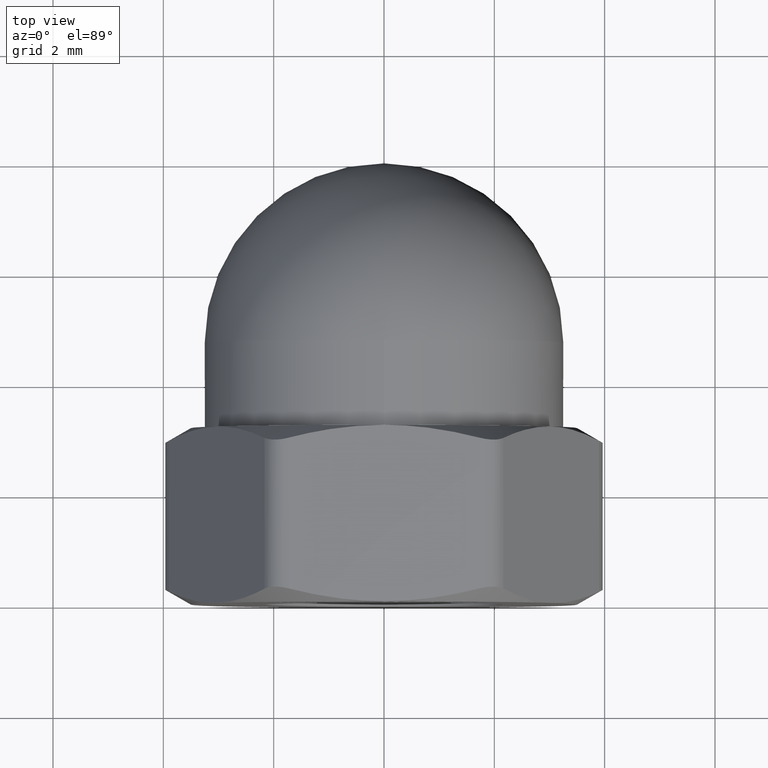
[diagram: clean part render]
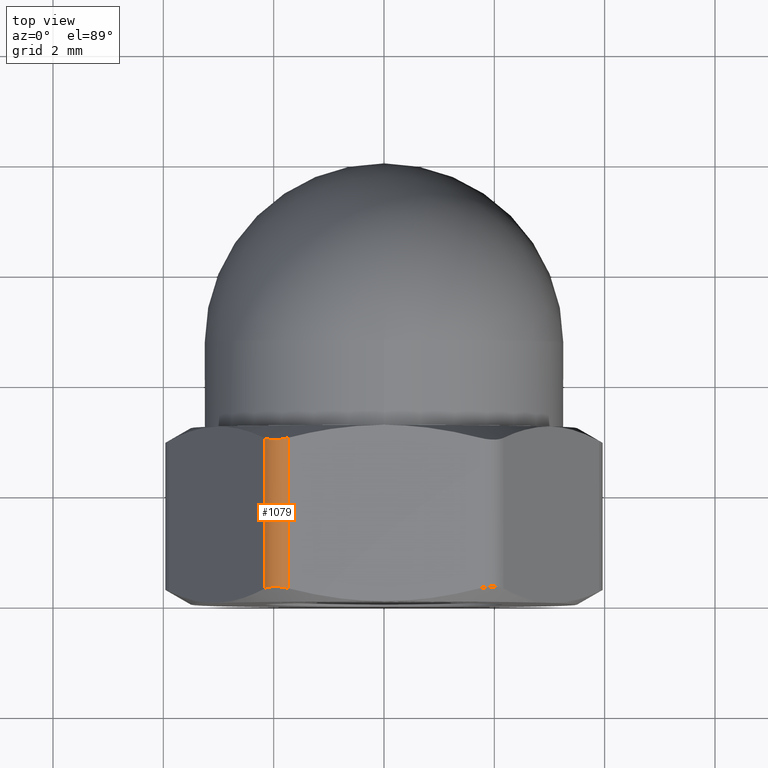
[diagram: same view with one face highlighted and labeled with its STEP entity id]
A machine part, top view. The second image highlights one B-rep face of the part: STEP entity #1079.
In plain terms, the highlighted cylindrical surface (edge-blend (fillet) strip) has radius 0.5 mm, axis along (0, -1, 0).
Its self-contained STEP definition (entity closure, byte-faithful):
#17 = CARTESIAN_POINT ( 'NONE',  ( -2.121969493532292800, 0.2559694276210456300, 3.324641025091053400 ) ) ;
#187 = LINE ( 'NONE', #3444, #2893 ) ;
#609 = ORIENTED_EDGE ( 'NONE', *, *, #2129, .F. ) ;
#719 = CARTESIAN_POINT ( 'NONE',  ( -1.732050807568966900, 2.966101065752227800, 3.500000000000000400 ) ) ;
#1079 = ADVANCED_FACE ( 'NONE', ( #2322 ), #4429, .T. ) ;
#2072 = CARTESIAN_POINT ( 'NONE',  ( -1.818238839427159600, 2.944030572378866700, 3.499999999999993800 ) ) ;
#2129 = EDGE_CURVE ( 'NONE', #6751, #3720, #187, .T. ) ;
#2322 = FACE_OUTER_BOUND ( 'NONE', #11961, .T. ) ;
#2494 = CARTESIAN_POINT ( 'NONE',  ( -2.057833504183887100, 0.2679865187067713700, 3.389344969317225100 ) ) ;
#2656 = CARTESIAN_POINT ( 'NONE',  ( -1.905537153561804200, 0.2679116865305356500, 3.477102041811184700 ) ) ;
#2780 = VECTOR ( 'NONE', #4577, 1000.000000000000000 ) ;
#2893 = VECTOR ( 'NONE', #13203, 1000.000000000000000 ) ;
#3444 = CARTESIAN_POINT ( 'NONE',  ( -1.732050807568875900, 3.200000000000000200, 3.500000000000000400 ) ) ;
#3720 = VERTEX_POINT ( 'NONE', #7125 ) ;
#4422 = CARTESIAN_POINT ( 'NONE',  ( -1.732050807568875900, 3.200000000000000200, 3.000000000000000400 ) ) ;
#4429 = CYLINDRICAL_SURFACE ( 'NONE', #4528, 0.5000000000000000000 ) ;
#4528 = AXIS2_PLACEMENT_3D ( 'NONE', #4422, #15405, #14516 ) ;
#4577 = DIRECTION ( 'NONE',  ( -0.0000000000000000000, 1.000000000000000000, -0.0000000000000000000 ) ) ;
#4634 = B_SPLINE_CURVE_WITH_KNOTS ( 'NONE', 3,
 ( #13498, #6127, #2656, #2494, #17, #13555 ),
 .UNSPECIFIED., .F., .F.,
 ( 4, 2, 4 ),
 ( 4.531265515576480700E-017, 0.0002632573935148302400, 0.0005265147870296151500 ),
 .UNSPECIFIED. ) ;
#4643 = CARTESIAN_POINT ( 'NONE',  ( -1.906342093526104600, 2.932013481293201700, 3.476808576040471400 ) ) ;
#5652 = CARTESIAN_POINT ( 'NONE',  ( -2.121982006247462100, 2.944036980735077700, 3.324619352432453200 ) ) ;
#6127 = CARTESIAN_POINT ( 'NONE',  ( -1.818213813996222900, 0.2559630192652003200, 3.500000000000000000 ) ) ;
#6141 = VERTEX_POINT ( 'NONE', #15504 ) ;
#6751 = VERTEX_POINT ( 'NONE', #10107 ) ;
#6810 = LINE ( 'NONE', #9575, #2780 ) ;
#7125 = CARTESIAN_POINT ( 'NONE',  ( -1.732050807568966700, 0.2338989342477722500, 3.500000000000000400 ) ) ;
#7605 = ORIENTED_EDGE ( 'NONE', *, *, #10327, .F. ) ;
#8003 = EDGE_CURVE ( 'NONE', #3720, #13394, #4634, .T. ) ;
#9575 = CARTESIAN_POINT ( 'NONE',  ( -2.165063509461095000, 3.200000000000000200, 3.250000000000000900 ) ) ;
#9848 = ORIENTED_EDGE ( 'NONE', *, *, #8003, .F. ) ;
#10022 = CARTESIAN_POINT ( 'NONE',  ( -2.165063509461289100, 0.2338989342476485700, 3.249999999999665200 ) ) ;
#10107 = CARTESIAN_POINT ( 'NONE',  ( -1.732050807568966900, 2.966101065752227800, 3.500000000000000400 ) ) ;
#10327 = EDGE_CURVE ( 'NONE', #6141, #6751, #13016, .T. ) ;
#11961 = EDGE_LOOP ( 'NONE', ( #7605, #15047, #9848, #609 ) ) ;
#13016 = B_SPLINE_CURVE_WITH_KNOTS ( 'NONE', 3,
 ( #15635, #5652, #13241, #4643, #2072, #719 ),
 .UNSPECIFIED., .F., .F.,
 ( 4, 2, 4 ),
 ( 6.133173666733496700E-019, 0.0002632573935145654700, 0.0005265147870291304100 ),
 .UNSPECIFIED. ) ;
#13089 = EDGE_CURVE ( 'NONE', #13394, #6141, #6810, .T. ) ;
#13203 = DIRECTION ( 'NONE',  ( 0.0000000000000000000, -1.000000000000000000, 0.0000000000000000000 ) ) ;
#13241 = CARTESIAN_POINT ( 'NONE',  ( -2.058490122978496700, 2.932088313469491100, 3.388794603745043200 ) ) ;
#13394 = VERTEX_POINT ( 'NONE', #10022 ) ;
#13498 = CARTESIAN_POINT ( 'NONE',  ( -1.732050807568966700, 0.2338989342477722500, 3.500000000000000400 ) ) ;
#13555 = CARTESIAN_POINT ( 'NONE',  ( -2.165063509461289100, 0.2338989342476485700, 3.249999999999665200 ) ) ;
#14516 = DIRECTION ( 'NONE',  ( 0.0000000000000000000, 0.0000000000000000000, -1.000000000000000000 ) ) ;
#15047 = ORIENTED_EDGE ( 'NONE', *, *, #13089, .F. ) ;
#15405 = DIRECTION ( 'NONE',  ( 0.0000000000000000000, -1.000000000000000000, 0.0000000000000000000 ) ) ;
#15504 = CARTESIAN_POINT ( 'NONE',  ( -2.165063509461095500, 2.966101065752248600, 3.250000000000000900 ) ) ;
#15635 = CARTESIAN_POINT ( 'NONE',  ( -2.165063509461095500, 2.966101065752248600, 3.250000000000000900 ) ) ;